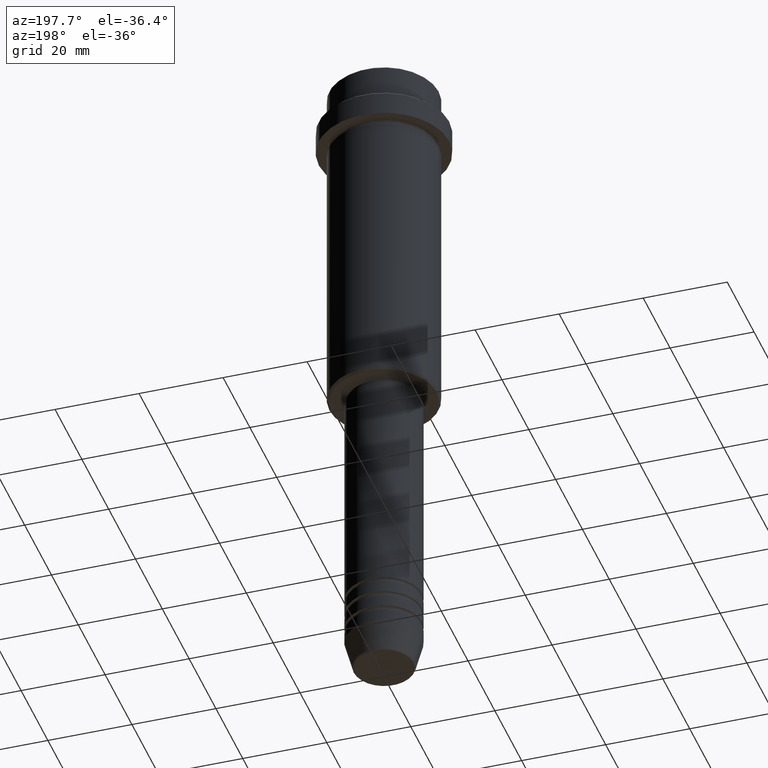
[diagram: clean part render]
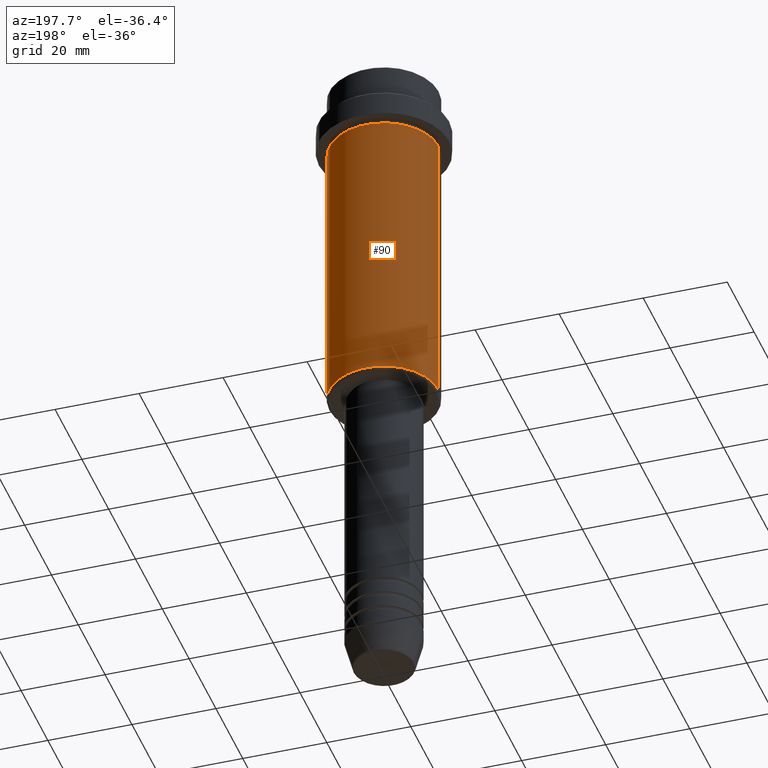
[diagram: same view with one face highlighted and labeled with its STEP entity id]
A machine part, auxiliary view. The second image highlights one B-rep face of the part: STEP entity #90.
In plain terms, the highlighted cylindrical surface (partial cylindrical patch) has radius 13 mm, axis along (-0, -0, 1).
Its self-contained STEP definition (entity closure, byte-faithful):
#47 = CARTESIAN_POINT ( 'NONE',  ( -13.00000000000000000, 1.592040838891559095E-15, -16.00000000000000000 ) ) ;
#63 = CARTESIAN_POINT ( 'NONE',  ( 13.00000000000000000, 0.000000000000000000, 0.000000000000000000 ) ) ;
#90 = ADVANCED_FACE ( 'NONE', ( #1197 ), #1295, .T. ) ;
#110 = VERTEX_POINT ( 'NONE', #1179 ) ;
#137 = AXIS2_PLACEMENT_3D ( 'NONE', #1160, #865, #413 ) ;
#143 = EDGE_CURVE ( 'NONE', #110, #960, #1121, .T. ) ;
#145 = ORIENTED_EDGE ( 'NONE', *, *, #1004, .T. ) ;
#190 = VECTOR ( 'NONE', #1181, 1000.000000000000000 ) ;
#237 = VECTOR ( 'NONE', #1144, 1000.000000000000000 ) ;
#357 = ORIENTED_EDGE ( 'NONE', *, *, #143, .T. ) ;
#413 = DIRECTION ( 'NONE',  ( 1.000000000000000000, 0.000000000000000000, 0.000000000000000000 ) ) ;
#432 = VERTEX_POINT ( 'NONE', #722 ) ;
#453 = VERTEX_POINT ( 'NONE', #47 ) ;
#475 = EDGE_LOOP ( 'NONE', ( #357, #145, #932, #1080 ) ) ;
#512 = DIRECTION ( 'NONE',  ( -0.000000000000000000, -0.000000000000000000, 1.000000000000000000 ) ) ;
#540 = DIRECTION ( 'NONE',  ( -1.000000000000000000, 0.000000000000000000, 0.000000000000000000 ) ) ;
#554 = CIRCLE ( 'NONE', #137, 13.00000000000000000 ) ;
#588 = EDGE_CURVE ( 'NONE', #432, #453, #554, .T. ) ;
#630 = DIRECTION ( 'NONE',  ( -0.000000000000000000, -0.000000000000000000, 1.000000000000000000 ) ) ;
#633 = LINE ( 'NONE', #1074, #190 ) ;
#722 = CARTESIAN_POINT ( 'NONE',  ( 13.00000000000000000, 0.000000000000000000, -16.00000000000000000 ) ) ;
#731 = LINE ( 'NONE', #63, #237 ) ;
#764 = CARTESIAN_POINT ( 'NONE',  ( 0.000000000000000000, 0.000000000000000000, 0.000000000000000000 ) ) ;
#772 = CARTESIAN_POINT ( 'NONE',  ( -13.00000000000000000, 1.592040838891559095E-15, -84.49999999999998579 ) ) ;
#865 = DIRECTION ( 'NONE',  ( -0.000000000000000000, -0.000000000000000000, 1.000000000000000000 ) ) ;
#932 = ORIENTED_EDGE ( 'NONE', *, *, #588, .F. ) ;
#960 = VERTEX_POINT ( 'NONE', #772 ) ;
#1004 = EDGE_CURVE ( 'NONE', #960, #453, #633, .T. ) ;
#1050 = AXIS2_PLACEMENT_3D ( 'NONE', #1186, #630, #540 ) ;
#1074 = CARTESIAN_POINT ( 'NONE',  ( -13.00000000000000000, 1.592040838891559095E-15, 0.000000000000000000 ) ) ;
#1080 = ORIENTED_EDGE ( 'NONE', *, *, #1325, .F. ) ;
#1121 = CIRCLE ( 'NONE', #1050, 13.00000000000000000 ) ;
#1144 = DIRECTION ( 'NONE',  ( -0.000000000000000000, -0.000000000000000000, 1.000000000000000000 ) ) ;
#1160 = CARTESIAN_POINT ( 'NONE',  ( 0.000000000000000000, 0.000000000000000000, -16.00000000000000000 ) ) ;
#1163 = AXIS2_PLACEMENT_3D ( 'NONE', #764, #512, #1279 ) ;
#1179 = CARTESIAN_POINT ( 'NONE',  ( 13.00000000000000000, 0.000000000000000000, -84.49999999999998579 ) ) ;
#1181 = DIRECTION ( 'NONE',  ( -0.000000000000000000, -0.000000000000000000, 1.000000000000000000 ) ) ;
#1186 = CARTESIAN_POINT ( 'NONE',  ( 0.000000000000000000, 0.000000000000000000, -84.49999999999998579 ) ) ;
#1197 = FACE_OUTER_BOUND ( 'NONE', #475, .T. ) ;
#1279 = DIRECTION ( 'NONE',  ( 1.000000000000000000, 0.000000000000000000, 0.000000000000000000 ) ) ;
#1295 = CYLINDRICAL_SURFACE ( 'NONE', #1163, 13.00000000000000000 ) ;
#1325 = EDGE_CURVE ( 'NONE', #110, #432, #731, .T. ) ;